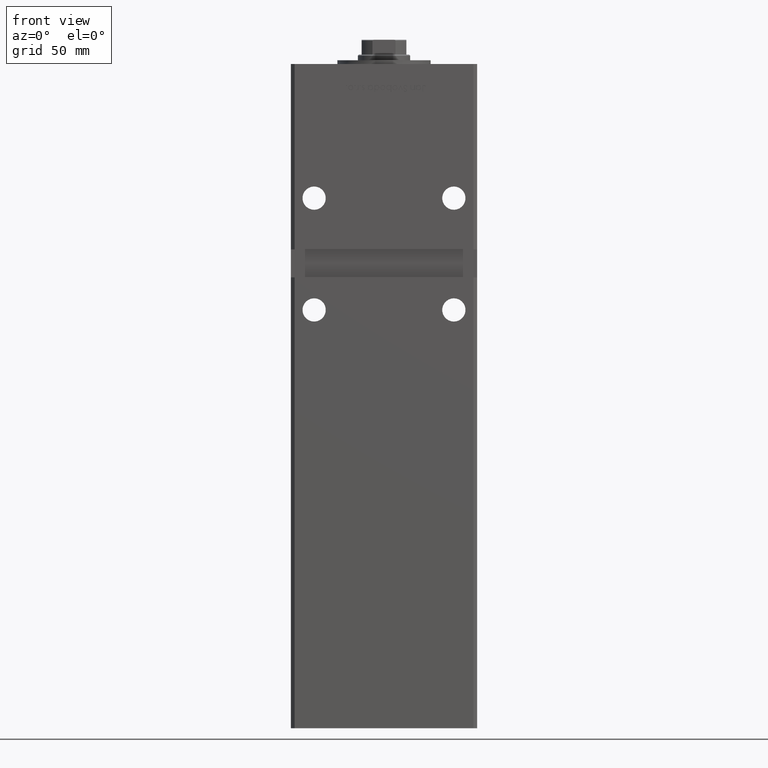
[diagram: clean part render]
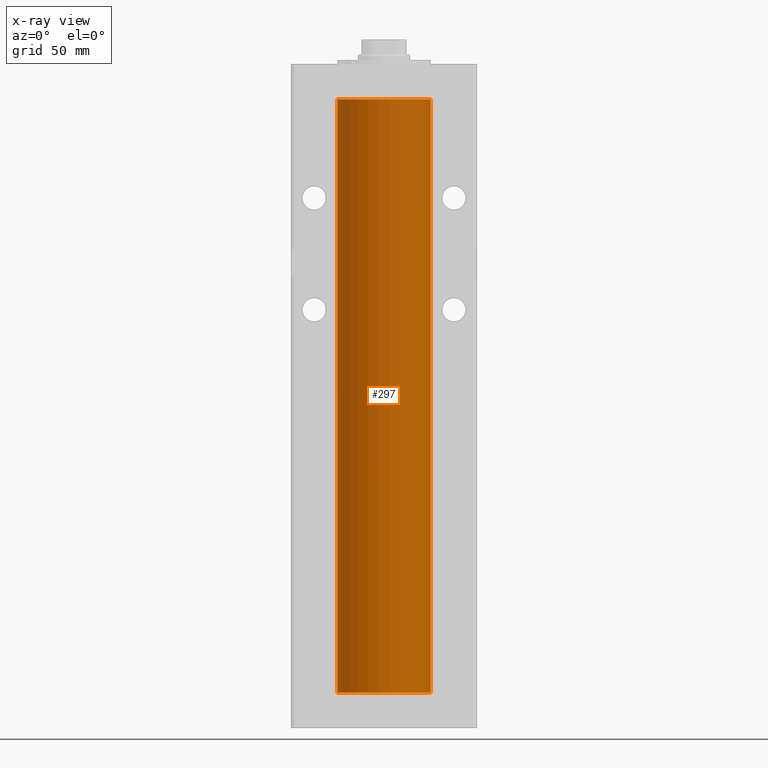
[diagram: x-ray — body ghosted, one internal face saturated and labeled with its STEP entity id]
A machine part, front view, then the same camera in x-ray: the body is ghosted and one INTERNAL B-rep face — a face not visible from any outside direction — is saturated and labeled: STEP entity #297.
In plain terms, the highlighted cylindrical surface (partial cylindrical patch) has radius 25 mm, axis along (-0, -0, -1).
Its self-contained STEP definition (entity closure, byte-faithful):
#234 = DIRECTION ( 'NONE',  ( -0.000000000000000000, 0.000000000000000000, 1.000000000000000000 ) ) ;
#297 = ADVANCED_FACE ( 'NONE', ( #29388 ), #49568, .F. ) ;
#986 = EDGE_CURVE ( 'NONE', #46556, #14943, #35579, .T. ) ;
#1392 = EDGE_CURVE ( 'NONE', #34664, #46556, #16107, .T. ) ;
#2777 = ORIENTED_EDGE ( 'NONE', *, *, #1392, .T. ) ;
#8380 = DIRECTION ( 'NONE',  ( -0.000000000000000000, 0.000000000000000000, 1.000000000000000000 ) ) ;
#10245 = CIRCLE ( 'NONE', #21423, 25.00000000000000000 ) ;
#11081 = ORIENTED_EDGE ( 'NONE', *, *, #31860, .F. ) ;
#12699 = AXIS2_PLACEMENT_3D ( 'NONE', #50198, #234, #45114 ) ;
#12739 = DIRECTION ( 'NONE',  ( -0.000000000000000000, -0.000000000000000000, -1.000000000000000000 ) ) ;
#14590 = CARTESIAN_POINT ( 'NONE',  ( 25.00000000000000000, 3.061616997868383043E-15, 318.5000000000000000 ) ) ;
#14943 = VERTEX_POINT ( 'NONE', #15463 ) ;
#15463 = CARTESIAN_POINT ( 'NONE',  ( 25.00000000000000000, 3.061616997868383043E-15, 0.000000000000000000 ) ) ;
#16107 = CIRCLE ( 'NONE', #12699, 25.00000000000000000 ) ;
#20490 = DIRECTION ( 'NONE',  ( 1.000000000000000000, 0.000000000000000000, 0.000000000000000000 ) ) ;
#20544 = CARTESIAN_POINT ( 'NONE',  ( -25.00000000000000000, 0.000000000000000000, 318.5000000000000000 ) ) ;
#21423 = AXIS2_PLACEMENT_3D ( 'NONE', #28275, #8380, #20490 ) ;
#24291 = DIRECTION ( 'NONE',  ( -0.000000000000000000, -0.000000000000000000, -1.000000000000000000 ) ) ;
#28275 = CARTESIAN_POINT ( 'NONE',  ( 0.000000000000000000, 0.000000000000000000, 0.000000000000000000 ) ) ;
#29002 = VECTOR ( 'NONE', #47941, 1000.000000000000000 ) ;
#29130 = DIRECTION ( 'NONE',  ( -1.000000000000000000, 0.000000000000000000, 0.000000000000000000 ) ) ;
#29388 = FACE_OUTER_BOUND ( 'NONE', #40609, .T. ) ;
#31860 = EDGE_CURVE ( 'NONE', #47745, #14943, #10245, .T. ) ;
#32080 = CARTESIAN_POINT ( 'NONE',  ( 25.00000000000000000, 3.061616997868383043E-15, 318.5000000000000000 ) ) ;
#33154 = CARTESIAN_POINT ( 'NONE',  ( -25.00000000000000000, 0.000000000000000000, 318.5000000000000000 ) ) ;
#33421 = LINE ( 'NONE', #33154, #47614 ) ;
#34664 = VERTEX_POINT ( 'NONE', #20544 ) ;
#35579 = LINE ( 'NONE', #32080, #29002 ) ;
#38395 = AXIS2_PLACEMENT_3D ( 'NONE', #41750, #12739, #29130 ) ;
#40609 = EDGE_LOOP ( 'NONE', ( #2777, #44979, #11081, #44037 ) ) ;
#41750 = CARTESIAN_POINT ( 'NONE',  ( 0.000000000000000000, 0.000000000000000000, 318.5000000000000000 ) ) ;
#44037 = ORIENTED_EDGE ( 'NONE', *, *, #52805, .F. ) ;
#44979 = ORIENTED_EDGE ( 'NONE', *, *, #986, .T. ) ;
#45114 = DIRECTION ( 'NONE',  ( 1.000000000000000000, 0.000000000000000000, 0.000000000000000000 ) ) ;
#46556 = VERTEX_POINT ( 'NONE', #14590 ) ;
#47614 = VECTOR ( 'NONE', #24291, 1000.000000000000000 ) ;
#47745 = VERTEX_POINT ( 'NONE', #48236 ) ;
#47941 = DIRECTION ( 'NONE',  ( -0.000000000000000000, -0.000000000000000000, -1.000000000000000000 ) ) ;
#48236 = CARTESIAN_POINT ( 'NONE',  ( -25.00000000000000000, 0.000000000000000000, 0.000000000000000000 ) ) ;
#49568 = CYLINDRICAL_SURFACE ( 'NONE', #38395, 25.00000000000000000 ) ;
#50198 = CARTESIAN_POINT ( 'NONE',  ( 0.000000000000000000, 0.000000000000000000, 318.5000000000000000 ) ) ;
#52805 = EDGE_CURVE ( 'NONE', #34664, #47745, #33421, .T. ) ;